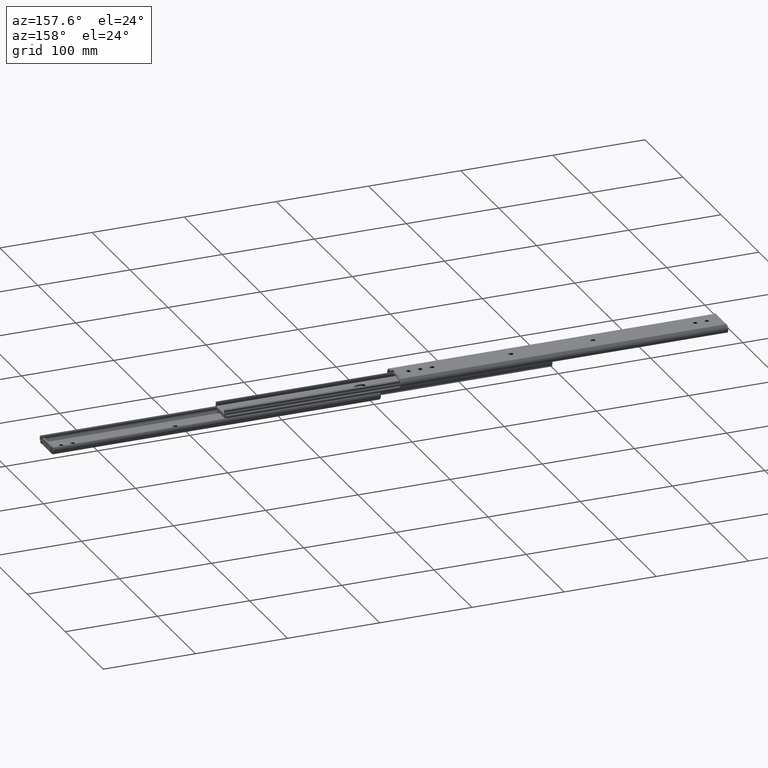
[diagram: clean part render]
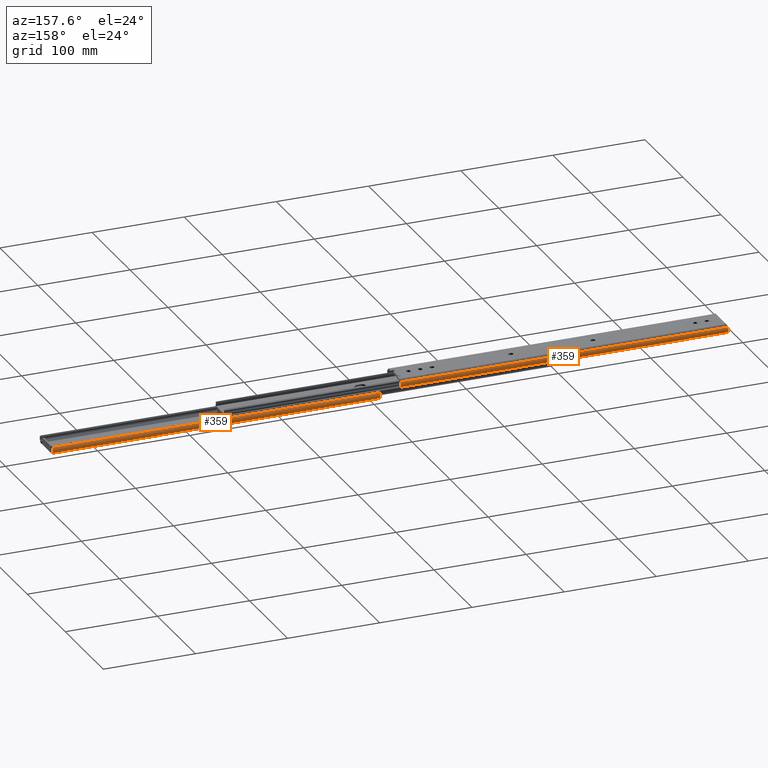
[diagram: same view with one multi-face feature highlighted, each face labeled with its STEP entity id]
A machine part, auxiliary view. The highlighted faces form ONE feature: a constant-radius fillet chain: 2 tangent blend faces with common blend radius 4 mm. The faces share edges in the B-rep.
Their STEP definitions:
[1] entity #359 (Cylinder):
#139 = EDGE_CURVE ( 'NONE', #2112, #468, #1982, .T. ) ;
#180 = CARTESIAN_POINT ( 'NONE',  ( 355.6000000000000200, 13.64999999999999700, 5.300000000000091300 ) ) ;
#359 = ADVANCED_FACE ( 'NONE', ( #4167 ), #1319, .T. ) ;
#387 = EDGE_CURVE ( 'NONE', #2112, #3366, #474, .T. ) ;
#468 = VERTEX_POINT ( 'NONE', #1262 ) ;
#474 = CIRCLE ( 'NONE', #622, 4.000000000000095900 ) ;
#479 = EDGE_CURVE ( 'NONE', #3366, #1724, #981, .T. ) ;
#486 = EDGE_CURVE ( 'NONE', #468, #1724, #3705, .T. ) ;
#622 = AXIS2_PLACEMENT_3D ( 'NONE', #4421, #4104, #1605 ) ;
#830 = CARTESIAN_POINT ( 'NONE',  ( 0.0000000000000000000, 15.91053091109173300, 8.600000000000021000 ) ) ;
#914 = ORIENTED_EDGE ( 'NONE', *, *, #387, .F. ) ;
#981 = LINE ( 'NONE', #3386, #3583 ) ;
#1082 = AXIS2_PLACEMENT_3D ( 'NONE', #180, #2589, #1871 ) ;
#1175 = ORIENTED_EDGE ( 'NONE', *, *, #486, .T. ) ;
#1262 = CARTESIAN_POINT ( 'NONE',  ( 0.0000000000000000000, 16.48258451996917300, 2.475736390272456500 ) ) ;
#1297 = CARTESIAN_POINT ( 'NONE',  ( 355.6000000000000200, 16.48258451996917300, 2.475736390272456500 ) ) ;
#1319 = CYLINDRICAL_SURFACE ( 'NONE', #1082, 4.000000000000095900 ) ;
#1321 = ORIENTED_EDGE ( 'NONE', *, *, #479, .F. ) ;
#1437 = CARTESIAN_POINT ( 'NONE',  ( 355.6000000000000200, 15.91053091109173300, 8.600000000000021000 ) ) ;
#1605 = DIRECTION ( 'NONE',  ( 0.0000000000000000000, 0.0000000000000000000, -1.000000000000000000 ) ) ;
#1659 = DIRECTION ( 'NONE',  ( -1.000000000000000000, -0.0000000000000000000, -0.0000000000000000000 ) ) ;
#1668 = DIRECTION ( 'NONE',  ( -1.000000000000000000, -0.0000000000000000000, -0.0000000000000000000 ) ) ;
#1724 = VERTEX_POINT ( 'NONE', #830 ) ;
#1871 = DIRECTION ( 'NONE',  ( 0.0000000000000000000, 0.0000000000000000000, 1.000000000000000000 ) ) ;
#1905 = DIRECTION ( 'NONE',  ( 1.000000000000000000, 0.0000000000000000000, 0.0000000000000000000 ) ) ;
#1982 = LINE ( 'NONE', #1297, #2802 ) ;
#2112 = VERTEX_POINT ( 'NONE', #3069 ) ;
#2589 = DIRECTION ( 'NONE',  ( -1.000000000000000000, -0.0000000000000000000, -0.0000000000000000000 ) ) ;
#2720 = ORIENTED_EDGE ( 'NONE', *, *, #139, .T. ) ;
#2802 = VECTOR ( 'NONE', #1659, 1000.000000000000000 ) ;
#2936 = CARTESIAN_POINT ( 'NONE',  ( 0.0000000000000000000, 13.64999999999999700, 5.300000000000091300 ) ) ;
#3069 = CARTESIAN_POINT ( 'NONE',  ( 355.6000000000000200, 16.48258451996917300, 2.475736390272456500 ) ) ;
#3223 = AXIS2_PLACEMENT_3D ( 'NONE', #2936, #1905, #4048 ) ;
#3366 = VERTEX_POINT ( 'NONE', #1437 ) ;
#3386 = CARTESIAN_POINT ( 'NONE',  ( 355.6000000000000200, 15.91053091109173300, 8.600000000000021000 ) ) ;
#3583 = VECTOR ( 'NONE', #1668, 1000.000000000000000 ) ;
#3705 = CIRCLE ( 'NONE', #3223, 4.000000000000095900 ) ;
#3916 = EDGE_LOOP ( 'NONE', ( #1175, #1321, #914, #2720 ) ) ;
#4048 = DIRECTION ( 'NONE',  ( 0.0000000000000000000, 0.0000000000000000000, -1.000000000000000000 ) ) ;
#4104 = DIRECTION ( 'NONE',  ( 1.000000000000000000, 0.0000000000000000000, 0.0000000000000000000 ) ) ;
#4167 = FACE_OUTER_BOUND ( 'NONE', #3916, .T. ) ;
#4421 = CARTESIAN_POINT ( 'NONE',  ( 355.6000000000000200, 13.64999999999999700, 5.300000000000091300 ) ) ;
[2] entity #359 (Cylinder):
#139 = EDGE_CURVE ( 'NONE', #2112, #468, #1982, .T. ) ;
#180 = CARTESIAN_POINT ( 'NONE',  ( 355.6000000000000200, 13.64999999999999700, 5.300000000000091300 ) ) ;
#359 = ADVANCED_FACE ( 'NONE', ( #4167 ), #1319, .T. ) ;
#387 = EDGE_CURVE ( 'NONE', #2112, #3366, #474, .T. ) ;
#468 = VERTEX_POINT ( 'NONE', #1262 ) ;
#474 = CIRCLE ( 'NONE', #622, 4.000000000000095900 ) ;
#479 = EDGE_CURVE ( 'NONE', #3366, #1724, #981, .T. ) ;
#486 = EDGE_CURVE ( 'NONE', #468, #1724, #3705, .T. ) ;
#622 = AXIS2_PLACEMENT_3D ( 'NONE', #4421, #4104, #1605 ) ;
#830 = CARTESIAN_POINT ( 'NONE',  ( 0.0000000000000000000, 15.91053091109173300, 8.600000000000021000 ) ) ;
#914 = ORIENTED_EDGE ( 'NONE', *, *, #387, .F. ) ;
#981 = LINE ( 'NONE', #3386, #3583 ) ;
#1082 = AXIS2_PLACEMENT_3D ( 'NONE', #180, #2589, #1871 ) ;
#1175 = ORIENTED_EDGE ( 'NONE', *, *, #486, .T. ) ;
#1262 = CARTESIAN_POINT ( 'NONE',  ( 0.0000000000000000000, 16.48258451996917300, 2.475736390272456500 ) ) ;
#1297 = CARTESIAN_POINT ( 'NONE',  ( 355.6000000000000200, 16.48258451996917300, 2.475736390272456500 ) ) ;
#1319 = CYLINDRICAL_SURFACE ( 'NONE', #1082, 4.000000000000095900 ) ;
#1321 = ORIENTED_EDGE ( 'NONE', *, *, #479, .F. ) ;
#1437 = CARTESIAN_POINT ( 'NONE',  ( 355.6000000000000200, 15.91053091109173300, 8.600000000000021000 ) ) ;
#1605 = DIRECTION ( 'NONE',  ( 0.0000000000000000000, 0.0000000000000000000, -1.000000000000000000 ) ) ;
#1659 = DIRECTION ( 'NONE',  ( -1.000000000000000000, -0.0000000000000000000, -0.0000000000000000000 ) ) ;
#1668 = DIRECTION ( 'NONE',  ( -1.000000000000000000, -0.0000000000000000000, -0.0000000000000000000 ) ) ;
#1724 = VERTEX_POINT ( 'NONE', #830 ) ;
#1871 = DIRECTION ( 'NONE',  ( 0.0000000000000000000, 0.0000000000000000000, 1.000000000000000000 ) ) ;
#1905 = DIRECTION ( 'NONE',  ( 1.000000000000000000, 0.0000000000000000000, 0.0000000000000000000 ) ) ;
#1982 = LINE ( 'NONE', #1297, #2802 ) ;
#2112 = VERTEX_POINT ( 'NONE', #3069 ) ;
#2589 = DIRECTION ( 'NONE',  ( -1.000000000000000000, -0.0000000000000000000, -0.0000000000000000000 ) ) ;
#2720 = ORIENTED_EDGE ( 'NONE', *, *, #139, .T. ) ;
#2802 = VECTOR ( 'NONE', #1659, 1000.000000000000000 ) ;
#2936 = CARTESIAN_POINT ( 'NONE',  ( 0.0000000000000000000, 13.64999999999999700, 5.300000000000091300 ) ) ;
#3069 = CARTESIAN_POINT ( 'NONE',  ( 355.6000000000000200, 16.48258451996917300, 2.475736390272456500 ) ) ;
#3223 = AXIS2_PLACEMENT_3D ( 'NONE', #2936, #1905, #4048 ) ;
#3366 = VERTEX_POINT ( 'NONE', #1437 ) ;
#3386 = CARTESIAN_POINT ( 'NONE',  ( 355.6000000000000200, 15.91053091109173300, 8.600000000000021000 ) ) ;
#3583 = VECTOR ( 'NONE', #1668, 1000.000000000000000 ) ;
#3705 = CIRCLE ( 'NONE', #3223, 4.000000000000095900 ) ;
#3916 = EDGE_LOOP ( 'NONE', ( #1175, #1321, #914, #2720 ) ) ;
#4048 = DIRECTION ( 'NONE',  ( 0.0000000000000000000, 0.0000000000000000000, -1.000000000000000000 ) ) ;
#4104 = DIRECTION ( 'NONE',  ( 1.000000000000000000, 0.0000000000000000000, 0.0000000000000000000 ) ) ;
#4167 = FACE_OUTER_BOUND ( 'NONE', #3916, .T. ) ;
#4421 = CARTESIAN_POINT ( 'NONE',  ( 355.6000000000000200, 13.64999999999999700, 5.300000000000091300 ) ) ;